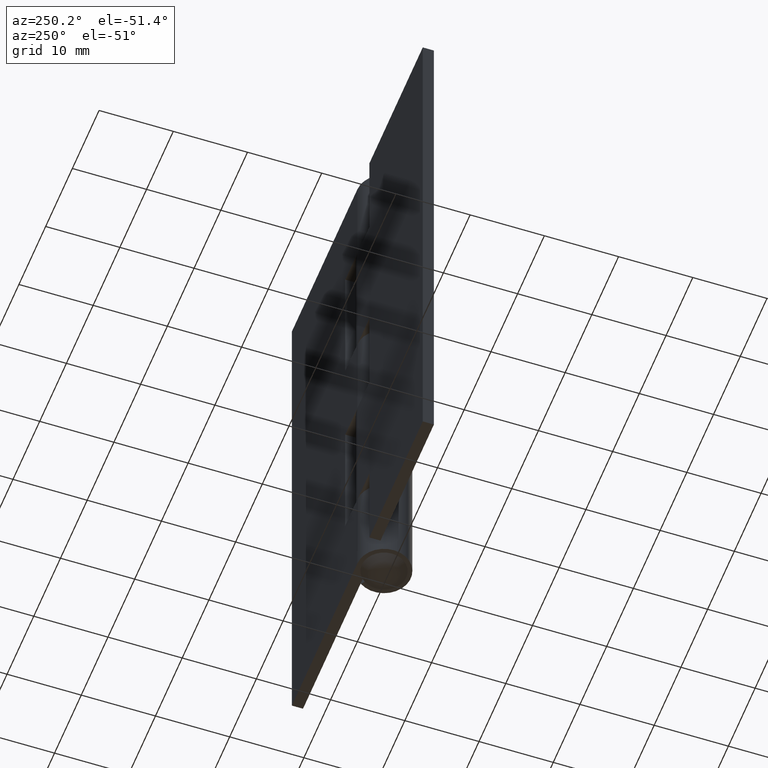
[diagram: clean part render]
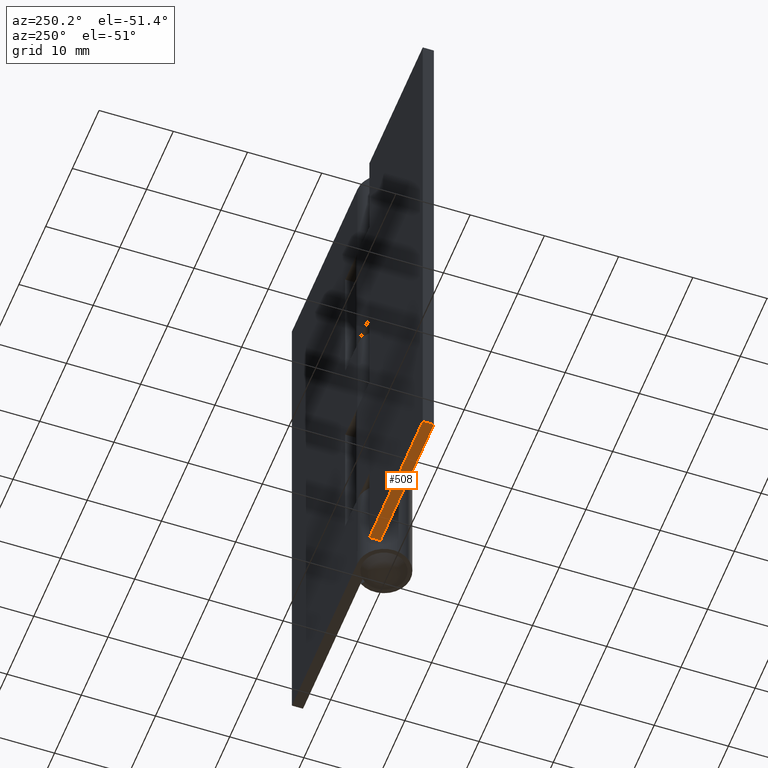
[diagram: same view with one face highlighted and labeled with its STEP entity id]
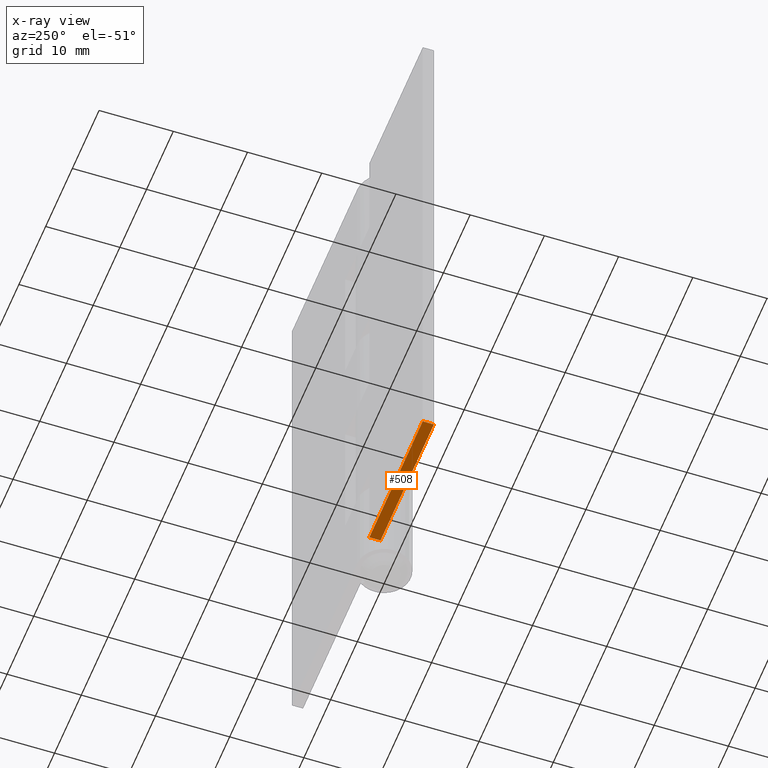
[diagram: x-ray of the same camera — body ghosted, the highlighted face saturated]
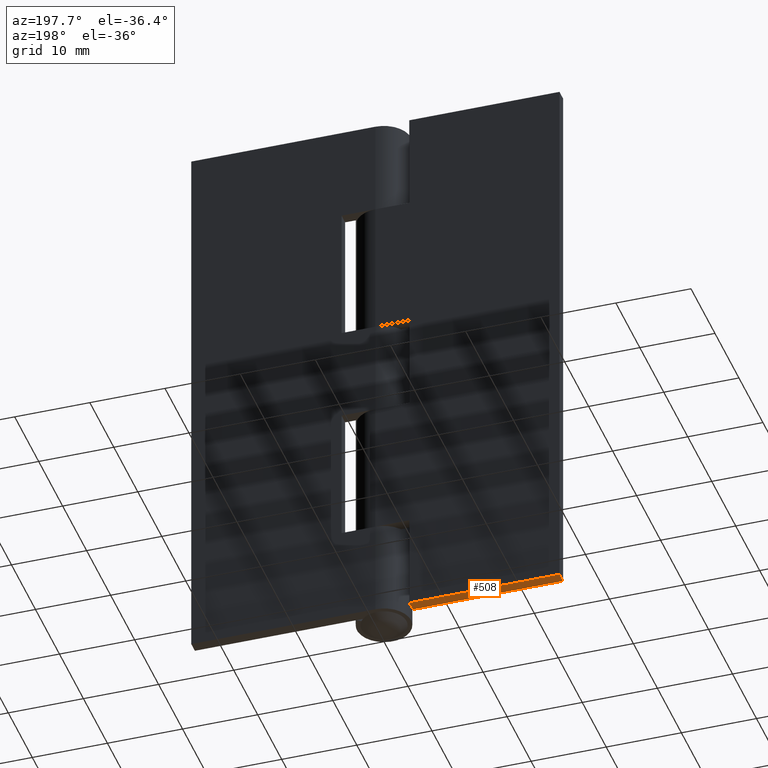
[diagram: same view with one face highlighted and labeled with its STEP entity id]
A machine part, auxiliary view. The second image highlights one B-rep face of the part: STEP entity #508.
The next image is the same camera in x-ray: the body ghosted, the highlighted face saturated — about 0% of this face is hidden behind the body in this view.
A second angle (auxiliary view) of the same face is appended — the face is thin or edge-on in the first view.
In plain terms, the highlighted face is a freeform B-spline surface patch.
Its self-contained STEP definition (entity closure, byte-faithful):
#237=CARTESIAN_POINT('',(-4.500000000000000,2.099997999999970,0.0));
#238=VERTEX_POINT('',#237);
#239=CARTESIAN_POINT('',(-4.500000000000000,3.599998000000000,9.102976E-016));
#240=VERTEX_POINT('',#239);
#241=CARTESIAN_POINT('',(-4.500000000000000,2.099997999999970,0.0));
#242=CARTESIAN_POINT('',(-4.500000000000000,3.599998000000000,9.102976E-016));
#243=QUASI_UNIFORM_CURVE('',1,(#241,#242),.UNSPECIFIED.,.F.,.U.);
#244=EDGE_CURVE('',#238,#240,#243,.T.);
#481=CARTESIAN_POINT('',(-25.499008360836051,2.025073002907260,0.0));
#482=CARTESIAN_POINT('',(-3.500999102721881,2.025073002907260,0.0));
#483=CARTESIAN_POINT('',(-25.499008360836051,3.674923037325847,0.0));
#484=CARTESIAN_POINT('',(-3.500999102721881,3.674923037325847,0.0));
#485=B_SPLINE_SURFACE_WITH_KNOTS('',1,1,((#481,#483),(#482,#484)),.UNSPECIFIED.,.F.,.F.,.U.,(2,2),(2,2),(0.0,21.998009258114170),(0.041708334948495,0.958291687403247),.UNSPECIFIED.);
#486=ORIENTED_EDGE('',*,*,#244,.F.);
#487=CARTESIAN_POINT('',(-24.500007999999951,2.099997999999970,0.0));
#488=VERTEX_POINT('',#487);
#489=CARTESIAN_POINT('',(-24.500007999999951,2.099997999999970,0.0));
#490=CARTESIAN_POINT('',(-4.500000000000000,2.099997999999970,0.0));
#491=QUASI_UNIFORM_CURVE('',1,(#489,#490),.UNSPECIFIED.,.F.,.U.);
#492=EDGE_CURVE('',#488,#238,#491,.T.);
#493=ORIENTED_EDGE('',*,*,#492,.F.);
#494=CARTESIAN_POINT('',(-24.500007999999951,3.599998000000000,0.0));
#495=VERTEX_POINT('',#494);
#496=CARTESIAN_POINT('',(-24.500007999999951,3.599998000000000,0.0));
#497=CARTESIAN_POINT('',(-24.500007999999951,2.099997999999970,0.0));
#498=QUASI_UNIFORM_CURVE('',1,(#496,#497),.UNSPECIFIED.,.F.,.U.);
#499=EDGE_CURVE('',#495,#488,#498,.T.);
#500=ORIENTED_EDGE('',*,*,#499,.F.);
#501=CARTESIAN_POINT('',(-4.500000000000000,3.599998000000000,9.102976E-016));
#502=CARTESIAN_POINT('',(-24.500007999999951,3.599998000000000,0.0));
#503=QUASI_UNIFORM_CURVE('',1,(#501,#502),.UNSPECIFIED.,.F.,.U.);
#504=EDGE_CURVE('',#240,#495,#503,.T.);
#505=ORIENTED_EDGE('',*,*,#504,.F.);
#506=EDGE_LOOP('',(#486,#493,#500,#505));
#507=FACE_OUTER_BOUND('',#506,.T.);
#508=ADVANCED_FACE('',(#507),#485,.F.);